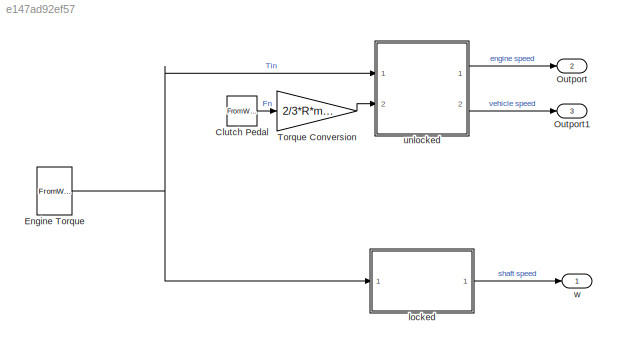
MODEL slx_e147ad92ef57
KIND model
CONFIG AbsTol = auto
CONFIG EnableMultiTasking = off
CONFIG FixedStep = auto
CONFIG MaxStep = auto
CONFIG MinStep = auto
CONFIG RelTol = 1e-3
CONFIG SampleTimeConstraint = Unconstrained
CONFIG SolverName = VariableStepAuto
CONFIG StartTime = 0.0
CONFIG StopTime = 10.0
BLOCK [FromWorkspace] Clutch Pedal
  VariableName = Fn
  ZeroCross = off
BLOCK [FromWorkspace] Engine Torque
  VariableName = Tin
  ZeroCross = off
BLOCK [Outport] Outport
  Port = 2
BLOCK [Outport] Outport1
  Port = 3
BLOCK [Gain] Torque Conversion
  Gain = 2/3*R*muk
  OutDataTypeStr = Inherit: Same as input
  ParamDataTypeStr = Inherit: Same as input
  SaturateOnIntegerOverflow = on
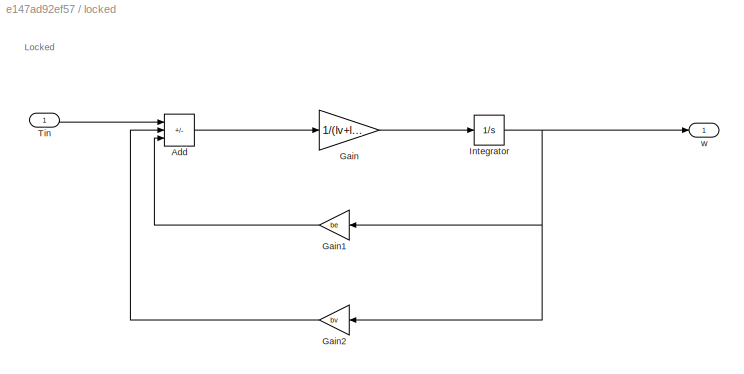
BLOCK [SubSystem] locked
  Ports = [1, 1]
  RequestExecContextInheritance = off
BLOCK [Sum] locked/Add
  IconShape = rectangular
  Inputs = +--
  Ports = [3, 1]
BLOCK [Gain] locked/Gain
  Gain = 1/(lv+le)
BLOCK [Gain] locked/Gain1
  Gain = be
  NameLocation = top
BLOCK [Gain] locked/Gain2
  Gain = bv
  NameLocation = top
BLOCK [Integrator] locked/Integrator
  Ports = [1, 1]
BLOCK [Inport] locked/Tin
BLOCK [Outport] locked/w
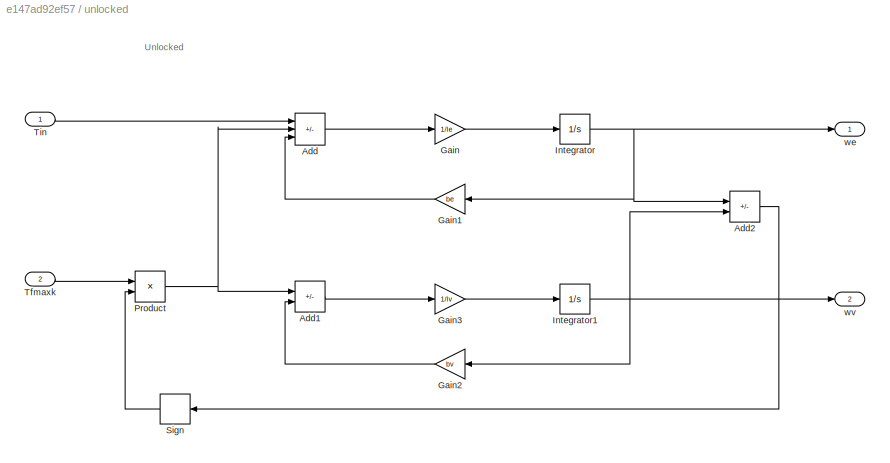
BLOCK [SubSystem] unlocked
  Ports = [2, 2]
  RequestExecContextInheritance = off
BLOCK [Sum] unlocked/Add
  IconShape = rectangular
  Inputs = +--
  Ports = [3, 1]
BLOCK [Sum] unlocked/Add1
  IconShape = rectangular
  Inputs = +-
  Ports = [2, 1]
BLOCK [Sum] unlocked/Add2
  IconShape = rectangular
  Inputs = +-
  Ports = [2, 1]
BLOCK [Gain] unlocked/Gain
  Gain = 1/le
BLOCK [Gain] unlocked/Gain1
  Gain = be
  NameLocation = top
BLOCK [Gain] unlocked/Gain2
  Gain = bv
  NameLocation = top
BLOCK [Gain] unlocked/Gain3
  Gain = 1/lv
BLOCK [Integrator] unlocked/Integrator
  Ports = [1, 1]
BLOCK [Integrator] unlocked/Integrator1
  Ports = [1, 1]
BLOCK [Product] unlocked/Product
  Ports = [2, 1]
BLOCK [Signum] unlocked/Sign
  NameLocation = top
  ZeroCross = off
BLOCK [Inport] unlocked/Tfmaxk
  Port = 2
BLOCK [Inport] unlocked/Tin
BLOCK [Outport] unlocked/we
BLOCK [Outport] unlocked/wv
  Port = 2
BLOCK [Outport] w
ANNOTATION locked: Locked
ANNOTATION unlocked: Unlocked
LINE Clutch Pedal:1 -> Torque Conversion:1
NET Engine Torque:1 -> locked:1, unlocked:1
LINE Torque Conversion:1 -> unlocked:2
LINE locked/Add:1 -> locked/Gain:1
LINE locked/Gain1:1 -> locked/Add:3
LINE locked/Gain2:1 -> locked/Add:2
LINE locked/Gain:1 -> locked/Integrator:1
NET locked/Integrator:1 -> locked/Gain1:1, locked/Gain2:1, locked/w:1
LINE locked/Tin:1 -> locked/Add:1
LINE locked:1 -> w:1
LINE unlocked/Add1:1 -> unlocked/Gain3:1
LINE unlocked/Add2:1 -> unlocked/Sign:1
LINE unlocked/Add:1 -> unlocked/Gain:1
LINE unlocked/Gain1:1 -> unlocked/Add:3
LINE unlocked/Gain2:1 -> unlocked/Add1:2
LINE unlocked/Gain3:1 -> unlocked/Integrator1:1
LINE unlocked/Gain:1 -> unlocked/Integrator:1
NET unlocked/Integrator1:1 -> unlocked/Add2:2, unlocked/Gain2:1, unlocked/wv:1
NET unlocked/Integrator:1 -> unlocked/Add2:1, unlocked/Gain1:1, unlocked/we:1
NET unlocked/Product:1 -> unlocked/Add1:1, unlocked/Add:2
LINE unlocked/Sign:1 -> unlocked/Product:2
LINE unlocked/Tfmaxk:1 -> unlocked/Product:1
LINE unlocked/Tin:1 -> unlocked/Add:1
LINE unlocked:1 -> Outport:1
LINE unlocked:2 -> Outport1:1
note: NET lines group one-source signal fan-out (src -> all destinations, sorted); 1:1 wires keep LINE
